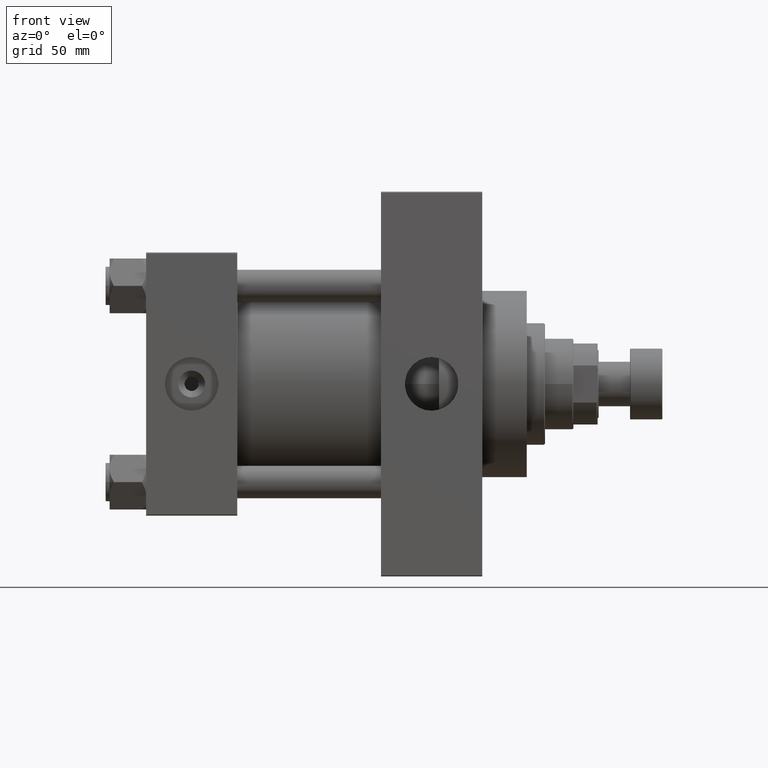
[diagram: clean part render]
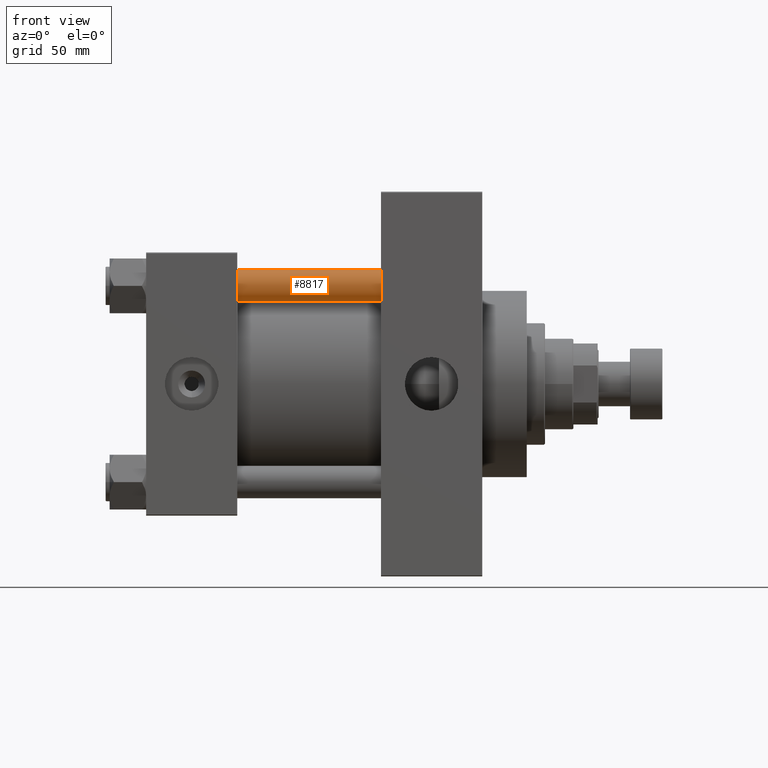
[diagram: same view with one face highlighted and labeled with its STEP entity id]
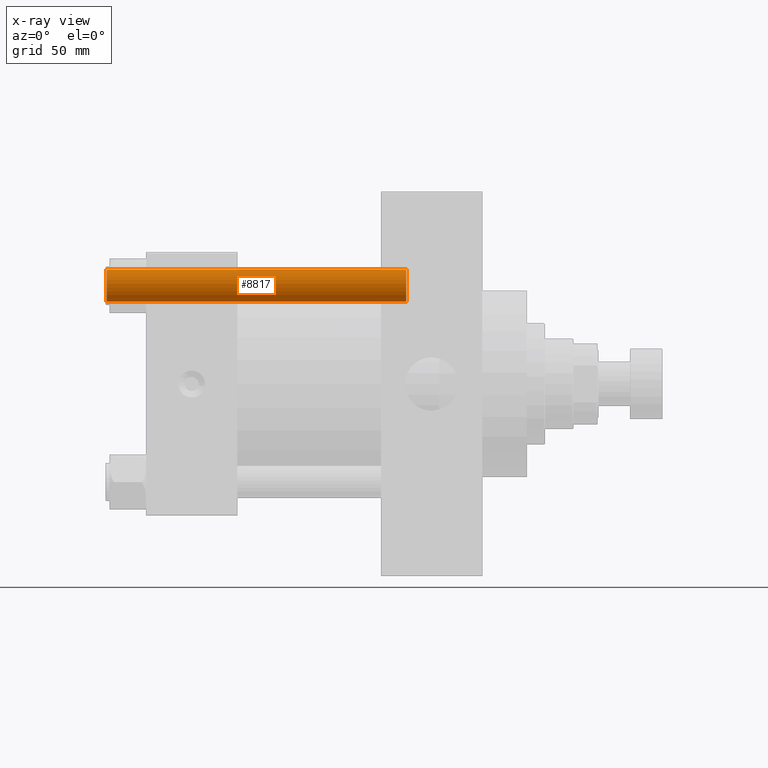
[diagram: x-ray of the same camera — body ghosted, the highlighted face saturated]
A machine part, front view. The second image highlights one B-rep face of the part: STEP entity #8817.
The next image is the same camera in x-ray: the body ghosted, the highlighted face saturated — about 0% of this face is hidden behind the body in this view.
In plain terms, the highlighted cylindrical surface (edge-blend (fillet) strip) has radius 8 mm, axis along (1, 0, 0).
Its self-contained STEP definition (entity closure, byte-faithful):
#921 = CIRCLE ( 'NONE', #5805, 8.000000000000000000 ) ;
#1799 = AXIS2_PLACEMENT_3D ( 'NONE', #43676, #24625, #39866 ) ;
#1893 = LINE ( 'NONE', #24505, #22910 ) ;
#3998 = VERTEX_POINT ( 'NONE', #42510 ) ;
#5805 = AXIS2_PLACEMENT_3D ( 'NONE', #39533, #32403, #28108 ) ;
#6159 = VERTEX_POINT ( 'NONE', #26197 ) ;
#7088 = LINE ( 'NONE', #29692, #18124 ) ;
#8399 = CYLINDRICAL_SURFACE ( 'NONE', #1799, 8.000000000000000000 ) ;
#8817 = ADVANCED_FACE ( 'NONE', ( #46985 ), #8399, .T. ) ;
#8984 = EDGE_CURVE ( 'NONE', #3998, #47586, #1893, .T. ) ;
#10899 = DIRECTION ( 'NONE',  ( -0.000000000000000000, -0.000000000000000000, -1.000000000000000000 ) ) ;
#11290 = CARTESIAN_POINT ( 'NONE',  ( 8.000000000000000000, 9.797174393178825657E-16, 0.5000000000000281997 ) ) ;
#15142 = CARTESIAN_POINT ( 'NONE',  ( 0.000000000000000000, 0.000000000000000000, 0.5000000000000281997 ) ) ;
#18124 = VECTOR ( 'NONE', #10899, 1000.000000000000000 ) ;
#18219 = CARTESIAN_POINT ( 'NONE',  ( -8.000000000000000000, 0.000000000000000000, 0.5000000000000281997 ) ) ;
#22910 = VECTOR ( 'NONE', #32369, 1000.000000000000000 ) ;
#24433 = CIRCLE ( 'NONE', #46330, 8.000000000000000000 ) ;
#24505 = CARTESIAN_POINT ( 'NONE',  ( 8.000000000000000000, 9.797174393178825657E-16, 149.0000000000000000 ) ) ;
#24625 = DIRECTION ( 'NONE',  ( -0.000000000000000000, -0.000000000000000000, -1.000000000000000000 ) ) ;
#26167 = ORIENTED_EDGE ( 'NONE', *, *, #38403, .T. ) ;
#26197 = CARTESIAN_POINT ( 'NONE',  ( -8.000000000000000000, 0.000000000000000000, 148.5000000000000000 ) ) ;
#28108 = DIRECTION ( 'NONE',  ( 1.000000000000000000, 0.000000000000000000, 0.000000000000000000 ) ) ;
#28411 = ORIENTED_EDGE ( 'NONE', *, *, #42596, .T. ) ;
#29692 = CARTESIAN_POINT ( 'NONE',  ( -8.000000000000000000, 0.000000000000000000, 149.0000000000000000 ) ) ;
#32369 = DIRECTION ( 'NONE',  ( -0.000000000000000000, -0.000000000000000000, -1.000000000000000000 ) ) ;
#32403 = DIRECTION ( 'NONE',  ( 0.000000000000000000, 0.000000000000000000, -1.000000000000000000 ) ) ;
#38403 = EDGE_CURVE ( 'NONE', #47586, #46265, #24433, .T. ) ;
#39533 = CARTESIAN_POINT ( 'NONE',  ( 0.000000000000000000, 0.000000000000000000, 148.5000000000000000 ) ) ;
#39866 = DIRECTION ( 'NONE',  ( -1.000000000000000000, 0.000000000000000000, 0.000000000000000000 ) ) ;
#40702 = ORIENTED_EDGE ( 'NONE', *, *, #47004, .F. ) ;
#40822 = ORIENTED_EDGE ( 'NONE', *, *, #8984, .T. ) ;
#42510 = CARTESIAN_POINT ( 'NONE',  ( 8.000000000000000000, 9.797174393178825657E-16, 148.5000000000000000 ) ) ;
#42596 = EDGE_CURVE ( 'NONE', #6159, #3998, #921, .T. ) ;
#43209 = EDGE_LOOP ( 'NONE', ( #28411, #40822, #26167, #40702 ) ) ;
#43676 = CARTESIAN_POINT ( 'NONE',  ( 0.000000000000000000, 0.000000000000000000, 149.0000000000000000 ) ) ;
#45370 = DIRECTION ( 'NONE',  ( 1.000000000000000000, 0.000000000000000000, 0.000000000000000000 ) ) ;
#46124 = DIRECTION ( 'NONE',  ( -0.000000000000000000, -0.000000000000000000, 1.000000000000000000 ) ) ;
#46265 = VERTEX_POINT ( 'NONE', #18219 ) ;
#46330 = AXIS2_PLACEMENT_3D ( 'NONE', #15142, #46124, #45370 ) ;
#46985 = FACE_OUTER_BOUND ( 'NONE', #43209, .T. ) ;
#47004 = EDGE_CURVE ( 'NONE', #6159, #46265, #7088, .T. ) ;
#47586 = VERTEX_POINT ( 'NONE', #11290 ) ;